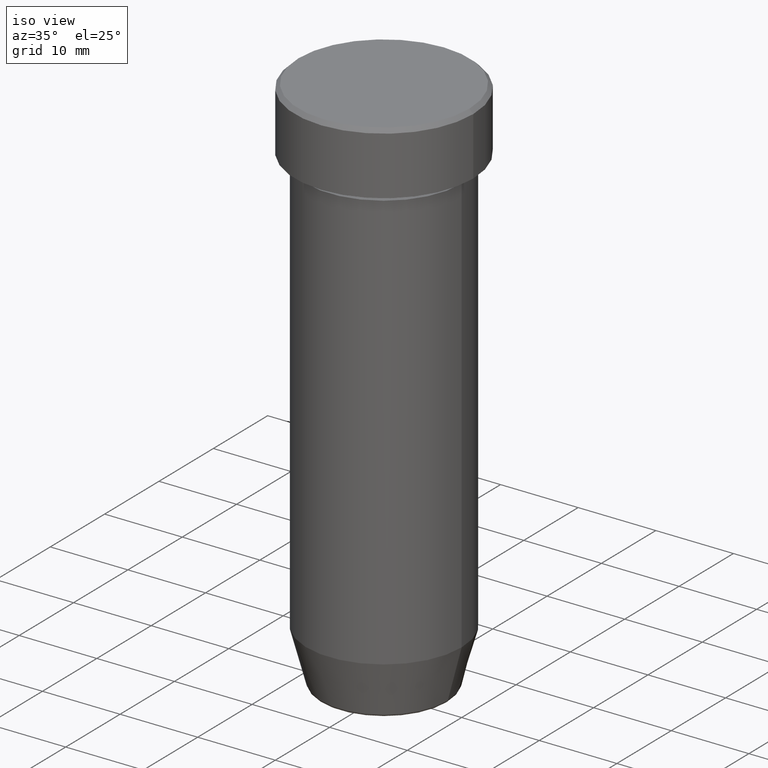
[diagram: clean part render]
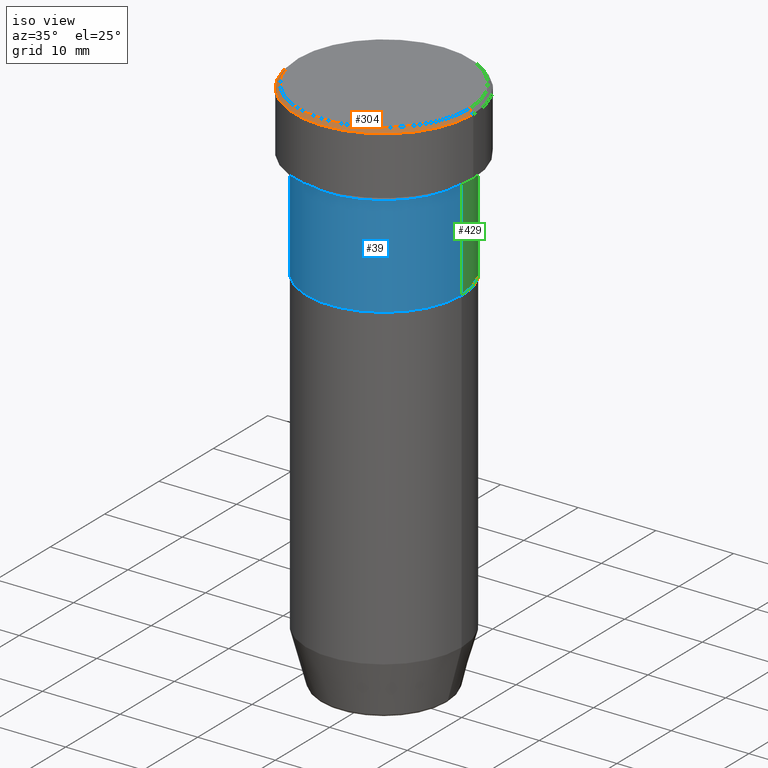
[diagram: same view with three faces highlighted in distinct colors, each labeled with its STEP entity id]
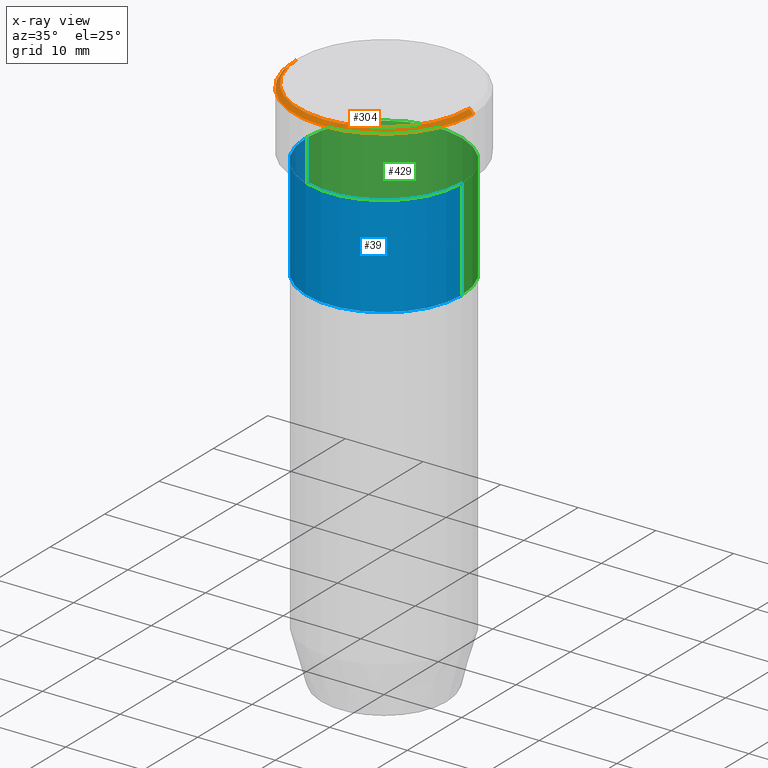
[diagram: x-ray of the same camera — body ghosted, the three highlighted faces saturated]
A machine part, iso view with three faces highlighted in distinct colors.
The next image is the same camera in x-ray (body ghosted, the three faces saturated) — at least one of them is partly hidden behind the body in this view.
Their STEP definitions:

[orange] entity #304 — the highlighted conical surface has half-angle 45 deg.
#13 = CARTESIAN_POINT ( 'NONE',  ( -11.50000000000000000, 1.408343819019456176E-15, -0.5000000000000073275 ) ) ;
#22 = ORIENTED_EDGE ( 'NONE', *, *, #249, .F. ) ;
#51 = LINE ( 'NONE', #509, #582 ) ;
#54 = CIRCLE ( 'NONE', #471, 11.00000000000000000 ) ;
#62 = VERTEX_POINT ( 'NONE', #315 ) ;
#84 = VERTEX_POINT ( 'NONE', #452 ) ;
#86 = VECTOR ( 'NONE', #508, 1000.000000000000000 ) ;
#92 = CONICAL_SURFACE ( 'NONE', #320, 11.00000000000000000, 0.7853981633974415066 ) ;
#93 = CARTESIAN_POINT ( 'NONE',  ( 0.000000000000000000, 0.000000000000000000, 0.000000000000000000 ) ) ;
#111 = ORIENTED_EDGE ( 'NONE', *, *, #361, .F. ) ;
#142 = DIRECTION ( 'NONE',  ( 0.000000000000000000, 0.000000000000000000, -1.000000000000000000 ) ) ;
#159 = ORIENTED_EDGE ( 'NONE', *, *, #224, .T. ) ;
#173 = DIRECTION ( 'NONE',  ( 0.000000000000000000, 0.000000000000000000, -1.000000000000000000 ) ) ;
#186 = AXIS2_PLACEMENT_3D ( 'NONE', #206, #173, #449 ) ;
#199 = LINE ( 'NONE', #239, #86 ) ;
#202 = EDGE_LOOP ( 'NONE', ( #22, #111, #159, #526 ) ) ;
#206 = CARTESIAN_POINT ( 'NONE',  ( 0.000000000000000000, 0.000000000000000000, -0.5000000000000073275 ) ) ;
#224 = EDGE_CURVE ( 'NONE', #62, #572, #199, .T. ) ;
#239 = CARTESIAN_POINT ( 'NONE',  ( -11.00000000000000000, 0.000000000000000000, 0.000000000000000000 ) ) ;
#249 = EDGE_CURVE ( 'NONE', #311, #84, #51, .T. ) ;
#266 = DIRECTION ( 'NONE',  ( 1.000000000000000000, 0.000000000000000000, 0.000000000000000000 ) ) ;
#278 = CARTESIAN_POINT ( 'NONE',  ( 11.00000000000000000, 1.377727649040772389E-15, 0.000000000000000000 ) ) ;
#289 = CIRCLE ( 'NONE', #186, 11.50000000000000000 ) ;
#290 = DIRECTION ( 'NONE',  ( 0.7071067811865426878, 8.659560562354874926E-17, -0.7071067811865524577 ) ) ;
#304 = ADVANCED_FACE ( 'NONE', ( #335 ), #92, .T. ) ;
#311 = VERTEX_POINT ( 'NONE', #278 ) ;
#315 = CARTESIAN_POINT ( 'NONE',  ( -11.00000000000000000, 0.000000000000000000, 0.000000000000000000 ) ) ;
#320 = AXIS2_PLACEMENT_3D ( 'NONE', #93, #142, #327 ) ;
#327 = DIRECTION ( 'NONE',  ( -1.000000000000000000, 0.000000000000000000, 0.000000000000000000 ) ) ;
#335 = FACE_OUTER_BOUND ( 'NONE', #202, .T. ) ;
#348 = CARTESIAN_POINT ( 'NONE',  ( 0.000000000000000000, 0.000000000000000000, 0.000000000000000000 ) ) ;
#349 = EDGE_CURVE ( 'NONE', #84, #572, #289, .T. ) ;
#358 = DIRECTION ( 'NONE',  ( -0.000000000000000000, -0.000000000000000000, 1.000000000000000000 ) ) ;
#361 = EDGE_CURVE ( 'NONE', #62, #311, #54, .T. ) ;
#449 = DIRECTION ( 'NONE',  ( 1.000000000000000000, 0.000000000000000000, 0.000000000000000000 ) ) ;
#452 = CARTESIAN_POINT ( 'NONE',  ( 11.50000000000000000, 0.000000000000000000, -0.5000000000000073275 ) ) ;
#471 = AXIS2_PLACEMENT_3D ( 'NONE', #348, #358, #266 ) ;
#508 = DIRECTION ( 'NONE',  ( -0.7071067811865426878, 0.000000000000000000, -0.7071067811865524577 ) ) ;
#509 = CARTESIAN_POINT ( 'NONE',  ( 11.00000000000000000, 1.347111479062088405E-15, 0.000000000000000000 ) ) ;
#526 = ORIENTED_EDGE ( 'NONE', *, *, #349, .F. ) ;
#572 = VERTEX_POINT ( 'NONE', #13 ) ;
#582 = VECTOR ( 'NONE', #290, 1000.000000000000000 ) ;

[blue] entity #39 — the highlighted cylindrical surface (partial cylindrical patch) has radius 10 mm, axis along (-0, -0, 1).
#2 = FACE_OUTER_BOUND ( 'NONE', #146, .T. ) ;
#4 = LINE ( 'NONE', #422, #78 ) ;
#7 = VERTEX_POINT ( 'NONE', #190 ) ;
#12 = VECTOR ( 'NONE', #414, 1000.000000000000000 ) ;
#21 = CARTESIAN_POINT ( 'NONE',  ( -10.00000000000000000, 1.224646799147353256E-15, -9.000000000000001776 ) ) ;
#39 = ADVANCED_FACE ( 'NONE', ( #2 ), #126, .T. ) ;
#40 = CARTESIAN_POINT ( 'NONE',  ( -10.00000000000000000, 1.224646799147353256E-15, 0.000000000000000000 ) ) ;
#48 = LINE ( 'NONE', #40, #12 ) ;
#78 = VECTOR ( 'NONE', #191, 1000.000000000000000 ) ;
#102 = EDGE_CURVE ( 'NONE', #444, #149, #48, .T. ) ;
#104 = DIRECTION ( 'NONE',  ( -0.000000000000000000, -0.000000000000000000, 1.000000000000000000 ) ) ;
#120 = CARTESIAN_POINT ( 'NONE',  ( 0.000000000000000000, 0.000000000000000000, -9.000000000000001776 ) ) ;
#126 = CYLINDRICAL_SURFACE ( 'NONE', #472, 10.00000000000000000 ) ;
#139 = DIRECTION ( 'NONE',  ( -0.000000000000000000, -0.000000000000000000, 1.000000000000000000 ) ) ;
#146 = EDGE_LOOP ( 'NONE', ( #390, #418, #211, #494 ) ) ;
#149 = VERTEX_POINT ( 'NONE', #21 ) ;
#167 = AXIS2_PLACEMENT_3D ( 'NONE', #120, #310, #585 ) ;
#190 = CARTESIAN_POINT ( 'NONE',  ( 10.00000000000000000, 0.000000000000000000, -22.00000000000000000 ) ) ;
#191 = DIRECTION ( 'NONE',  ( -0.000000000000000000, -0.000000000000000000, 1.000000000000000000 ) ) ;
#211 = ORIENTED_EDGE ( 'NONE', *, *, #570, .T. ) ;
#217 = CARTESIAN_POINT ( 'NONE',  ( -10.00000000000000000, 1.224646799147353256E-15, -22.00000000000000000 ) ) ;
#233 = EDGE_CURVE ( 'NONE', #444, #7, #272, .T. ) ;
#251 = CIRCLE ( 'NONE', #167, 10.00000000000000000 ) ;
#272 = CIRCLE ( 'NONE', #501, 10.00000000000000000 ) ;
#310 = DIRECTION ( 'NONE',  ( -0.000000000000000000, -0.000000000000000000, 1.000000000000000000 ) ) ;
#353 = CARTESIAN_POINT ( 'NONE',  ( 10.00000000000000000, 0.000000000000000000, -9.000000000000001776 ) ) ;
#385 = DIRECTION ( 'NONE',  ( 1.000000000000000000, 0.000000000000000000, 0.000000000000000000 ) ) ;
#390 = ORIENTED_EDGE ( 'NONE', *, *, #102, .F. ) ;
#408 = VERTEX_POINT ( 'NONE', #353 ) ;
#414 = DIRECTION ( 'NONE',  ( -0.000000000000000000, -0.000000000000000000, 1.000000000000000000 ) ) ;
#418 = ORIENTED_EDGE ( 'NONE', *, *, #233, .T. ) ;
#422 = CARTESIAN_POINT ( 'NONE',  ( 10.00000000000000000, 0.000000000000000000, 0.000000000000000000 ) ) ;
#444 = VERTEX_POINT ( 'NONE', #217 ) ;
#448 = EDGE_CURVE ( 'NONE', #149, #408, #251, .T. ) ;
#472 = AXIS2_PLACEMENT_3D ( 'NONE', #504, #139, #502 ) ;
#494 = ORIENTED_EDGE ( 'NONE', *, *, #448, .F. ) ;
#501 = AXIS2_PLACEMENT_3D ( 'NONE', #519, #104, #385 ) ;
#502 = DIRECTION ( 'NONE',  ( 1.000000000000000000, 0.000000000000000000, 0.000000000000000000 ) ) ;
#504 = CARTESIAN_POINT ( 'NONE',  ( 0.000000000000000000, 0.000000000000000000, 0.000000000000000000 ) ) ;
#519 = CARTESIAN_POINT ( 'NONE',  ( 0.000000000000000000, 0.000000000000000000, -22.00000000000000000 ) ) ;
#570 = EDGE_CURVE ( 'NONE', #7, #408, #4, .T. ) ;
#585 = DIRECTION ( 'NONE',  ( 1.000000000000000000, 0.000000000000000000, 0.000000000000000000 ) ) ;

[green] entity #429 — the highlighted cylindrical surface (partial cylindrical patch) has radius 10 mm, axis along (-0, -0, 1).
#4 = LINE ( 'NONE', #422, #78 ) ;
#7 = VERTEX_POINT ( 'NONE', #190 ) ;
#12 = VECTOR ( 'NONE', #414, 1000.000000000000000 ) ;
#21 = CARTESIAN_POINT ( 'NONE',  ( -10.00000000000000000, 1.224646799147353256E-15, -9.000000000000001776 ) ) ;
#26 = ORIENTED_EDGE ( 'NONE', *, *, #496, .F. ) ;
#40 = CARTESIAN_POINT ( 'NONE',  ( -10.00000000000000000, 1.224646799147353256E-15, 0.000000000000000000 ) ) ;
#48 = LINE ( 'NONE', #40, #12 ) ;
#57 = CARTESIAN_POINT ( 'NONE',  ( 0.000000000000000000, 0.000000000000000000, -22.00000000000000000 ) ) ;
#73 = CYLINDRICAL_SURFACE ( 'NONE', #569, 10.00000000000000000 ) ;
#78 = VECTOR ( 'NONE', #191, 1000.000000000000000 ) ;
#102 = EDGE_CURVE ( 'NONE', #444, #149, #48, .T. ) ;
#125 = CIRCLE ( 'NONE', #436, 10.00000000000000000 ) ;
#149 = VERTEX_POINT ( 'NONE', #21 ) ;
#171 = EDGE_LOOP ( 'NONE', ( #334, #366, #26, #255 ) ) ;
#190 = CARTESIAN_POINT ( 'NONE',  ( 10.00000000000000000, 0.000000000000000000, -22.00000000000000000 ) ) ;
#191 = DIRECTION ( 'NONE',  ( -0.000000000000000000, -0.000000000000000000, 1.000000000000000000 ) ) ;
#194 = CIRCLE ( 'NONE', #301, 10.00000000000000000 ) ;
#210 = FACE_OUTER_BOUND ( 'NONE', #171, .T. ) ;
#213 = DIRECTION ( 'NONE',  ( -0.000000000000000000, -0.000000000000000000, 1.000000000000000000 ) ) ;
#217 = CARTESIAN_POINT ( 'NONE',  ( -10.00000000000000000, 1.224646799147353256E-15, -22.00000000000000000 ) ) ;
#220 = EDGE_CURVE ( 'NONE', #7, #444, #194, .T. ) ;
#255 = ORIENTED_EDGE ( 'NONE', *, *, #570, .F. ) ;
#258 = CARTESIAN_POINT ( 'NONE',  ( 0.000000000000000000, 0.000000000000000000, 0.000000000000000000 ) ) ;
#293 = DIRECTION ( 'NONE',  ( -0.000000000000000000, -0.000000000000000000, 1.000000000000000000 ) ) ;
#301 = AXIS2_PLACEMENT_3D ( 'NONE', #57, #293, #374 ) ;
#323 = CARTESIAN_POINT ( 'NONE',  ( 0.000000000000000000, 0.000000000000000000, -9.000000000000001776 ) ) ;
#334 = ORIENTED_EDGE ( 'NONE', *, *, #220, .T. ) ;
#353 = CARTESIAN_POINT ( 'NONE',  ( 10.00000000000000000, 0.000000000000000000, -9.000000000000001776 ) ) ;
#366 = ORIENTED_EDGE ( 'NONE', *, *, #102, .T. ) ;
#374 = DIRECTION ( 'NONE',  ( 1.000000000000000000, 0.000000000000000000, 0.000000000000000000 ) ) ;
#397 = DIRECTION ( 'NONE',  ( 1.000000000000000000, 0.000000000000000000, 0.000000000000000000 ) ) ;
#408 = VERTEX_POINT ( 'NONE', #353 ) ;
#414 = DIRECTION ( 'NONE',  ( -0.000000000000000000, -0.000000000000000000, 1.000000000000000000 ) ) ;
#422 = CARTESIAN_POINT ( 'NONE',  ( 10.00000000000000000, 0.000000000000000000, 0.000000000000000000 ) ) ;
#429 = ADVANCED_FACE ( 'NONE', ( #210 ), #73, .T. ) ;
#436 = AXIS2_PLACEMENT_3D ( 'NONE', #323, #497, #552 ) ;
#444 = VERTEX_POINT ( 'NONE', #217 ) ;
#496 = EDGE_CURVE ( 'NONE', #408, #149, #125, .T. ) ;
#497 = DIRECTION ( 'NONE',  ( -0.000000000000000000, -0.000000000000000000, 1.000000000000000000 ) ) ;
#552 = DIRECTION ( 'NONE',  ( 1.000000000000000000, 0.000000000000000000, 0.000000000000000000 ) ) ;
#569 = AXIS2_PLACEMENT_3D ( 'NONE', #258, #213, #397 ) ;
#570 = EDGE_CURVE ( 'NONE', #7, #408, #4, .T. ) ;